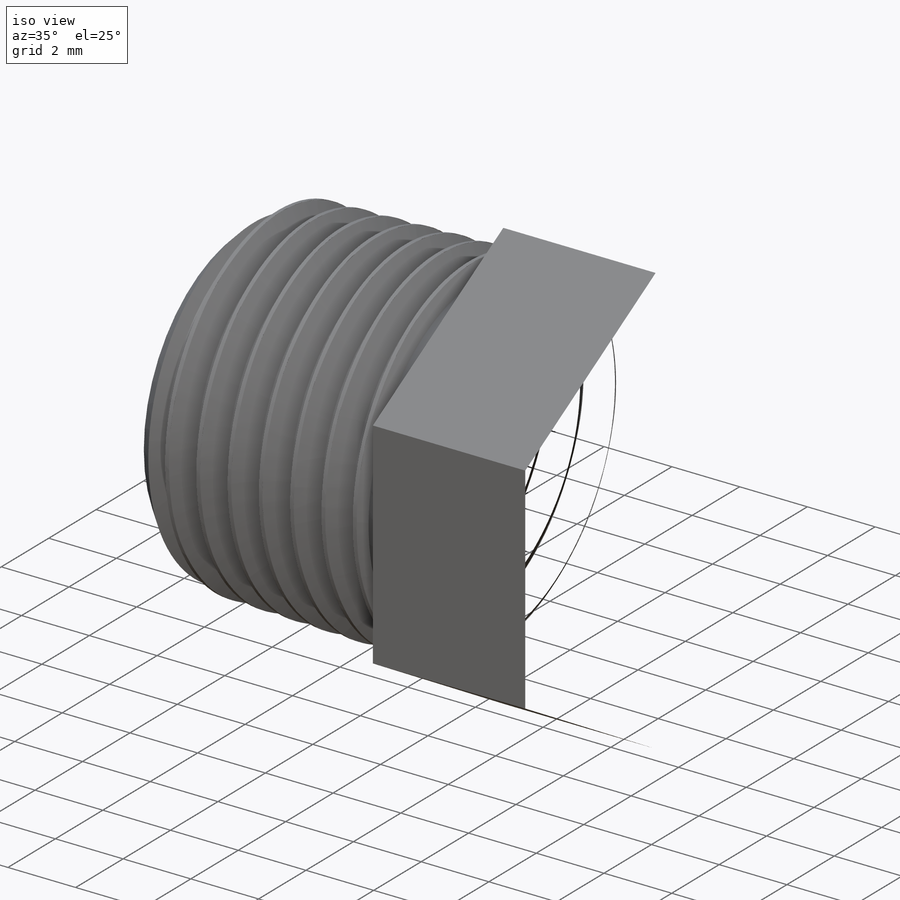
[diagram: iso view]
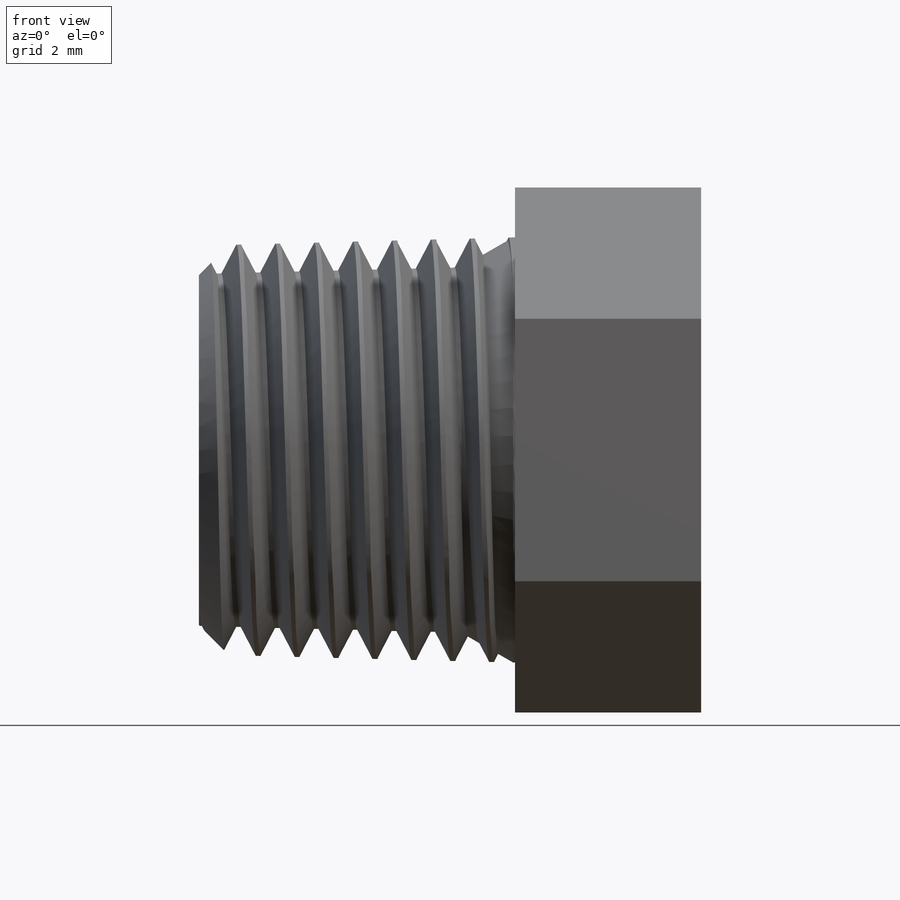
[diagram: front view]
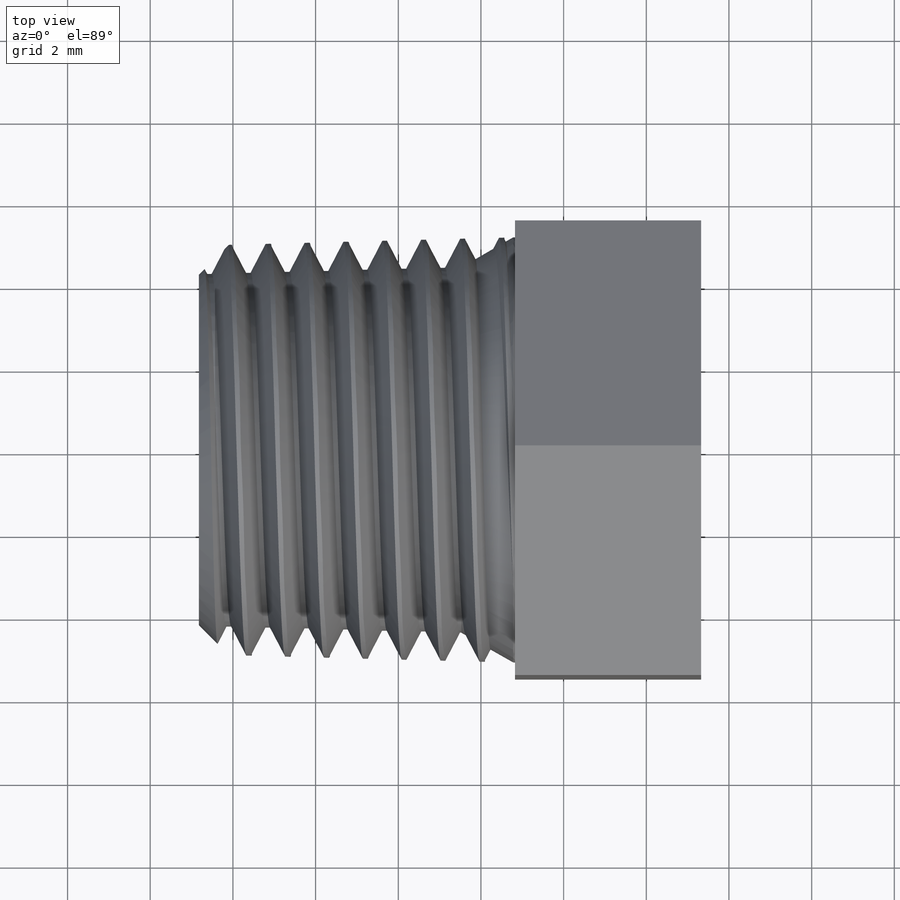
[diagram: top view]
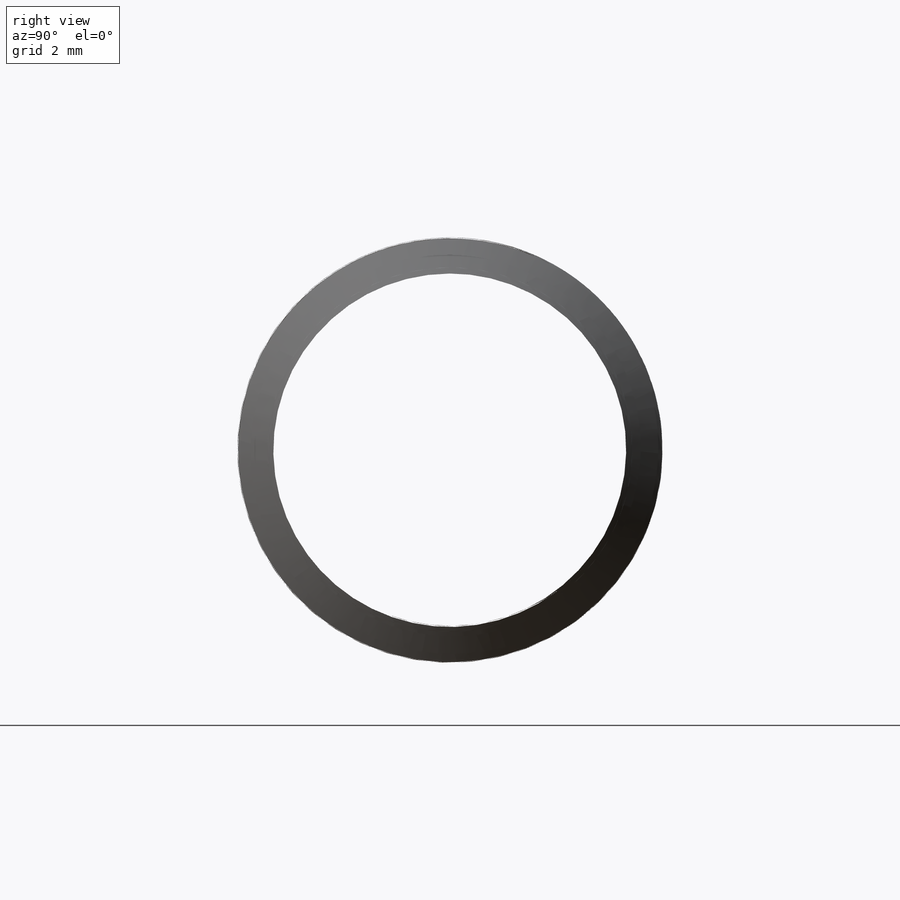
[diagram: right view]
SOLIDWORKS PART (.sldprt)
format: sldprt  version: not decoded by parser v0  size: 1,050,624 bytes
history: native  units: mm
features: sketch x8, plane x2, extrude x2, revolve x2, material x1, helix x1, chamfer x1, sweep x1, cut_extrude x1 (+12 scaffold rows collapsed)
feature tree (31):
  scaffold x12  (default folders/planes/origin — collapsed)
  material  "AISI 304"
  sketch  "Sketch1"  dims[c1.Hex=~11.99896mm c1.length=~28.99918mm c1.pipe od=10.287mm c1.D3=10.287mm c1.TE=~6.70306mm c1.D1=~6.444262mm c1.D2=~11.277459mm c1.D4=64.9986mm c2.D4=1.5deg c2.D5=~5.174074mm c2.D6=~5.174074mm c2.D2=7.6mm]
  plane  "Plane1"
  sketch  "Sketch2"
  extrude  "Extrude1"  [1 undecoded]
  sketch  "Sketch3"  dims[D1=0.0mm]
  helix  "Helix/Spiral1"  Pitch=12.2182mm
  chamfer  "Chamfer1"  Distance=0.705556mm Angle=45deg
  sketch  "Sketch4"  dims[c1.D1=~0.873768mm c2.D1=55.0deg c2.D2=~0.117593mm c2.D3=~0.47037mm c2.D4=1.778mm c3.D4=10.0deg c3.D5=~2.696746mm c4.D4=1.778mm c5.D4=10.0deg c6.D4=1.778mm c7.D4=10.0deg]
  sweep  "Cut-Sweep1"
  plane  "Plane2"
  sketch  "Sketch8"  dims[c1.D1=~15.59306mm c2.D1=30.0deg c2.D2=~2.193655mm c3.D2=30.0deg c3.D3=~2.822222mm c3.D4=~12.088707mm c4.D2=~3.258822mm c5.D2=60.0deg c5.D4=~9.266484mm c6.D2=3.175mm]
  revolve  "Revolve1"  Angle=360deg
  sketch  "Sketch9"  dims[D1=11.0mm]
  extrude  "Extrude3"  Depth=3.175mm
  sketch  "Sketch12"  dims[D1=5.0mm]
  cut_extrude  "Cut-Extrude3"  [1 undecoded]
  sketch  "Sketch13"  dims[c1.D1=24.638mm c1.D2=6.8mm c1.D3=5.588mm c1.D4=3.683mm c2.D1=22.9mm c2.D3=6.2mm]
  revolve  "Revolve2"  Angle=360deg
decode coverage: 12 of 16 modeling features carry decoded parameters
note: ~ marks probable driven/reference dimensions
note: 2 parameter values undecoded
note: suppression state not decoded; provenance and decode notes live in map.json
